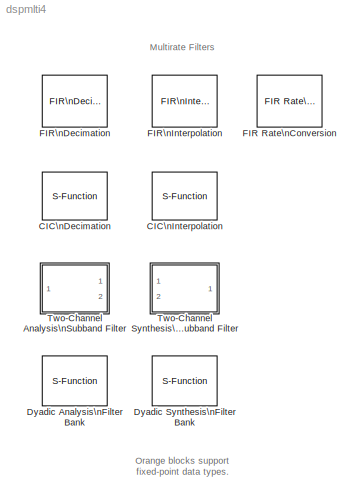
MODEL dspmlti4
KIND library
BLOCK [S-Function] CIC\nDecimation
  CopyFcn = dspfixptcopycallback
  FunctionName = sdspcicfilter
  MaskCallbackString = dspblkcicfilter('dynamic');||dspblkcicfilter('dynamic');||||||dspblkcicfilter('dynamic');||dspblkcicfilter('dynamic',get_param(gcb,'launchFVT'));|
  MaskDescription = Apply a Cascaded Integrator-Comb Decimator filter to the input signal. You can define the filter with the mask parameters, or by a CIC multirate filter (MFILT) object defined in the MATLAB workspace. You can use the latter option only when the Filter Design Toolbox is installed.\n\nWhen you choose a filter structure with zero latency, the filter output is not delayed. The outputs of the other stru...<+141ch>
  MaskDisplay = disp(dspblkcicfilter('icon'));
  MaskEnableString = on,on,on,on,on,on,on,on,on,on,on,on
  MaskIconFrame = on
  MaskIconOpaque = on
  MaskIconRotate = none
  MaskIconUnits = autoscale
  MaskInitialization = [ftype_Sfcn, R_Sfcn, M_Sfcn, N_Sfcn, stage2NWL_Sfcn, outWL_Sfcn, states_Sfcn, resampPhase_Sfcn] = dspblkcicfilter('init',R,resampPhase,M,N,BPS,outputWordLength,filtobj);
  MaskPromptString = Filter specified via:|Multirate filter variable:|Filter structure:|Decimation factor (R):|Resampler phase (0 to R-1):|Differential delay (M):|Number of stages (N):|Word length for each of the (2*N) filter stages:|Output word length mode:|Output word length:|Launch Filter Visualization Tool (FVTool)|Framing:
  MaskSelfModifiable = on
  MaskStyleString = popup(Dialog|Multirate object in workspace),edit,popup(Decimator|Zero-latency decimator),edit,edit,edit,edit,edit,popup(Same as final filter stage|Same as input|User-defined),edit,checkbox,popup(Maintain input frame rate|Maintain input frame size)
  MaskTabNameString = ,,,,,,,,,,,
  MaskToolTipString = on,on,on,on,on,on,on,on,on,on,on,on
  MaskTunableValueString = off,off,off,off,off,off,off,off,off,off,off,off
  MaskType = CIC Decimation
  MaskValueString = Dialog|Hm_decim|Decimator|2|0|1|2|[16 16 16 16]|Same as final filter stage|32|off|Maintain input frame rate
  MaskVarAliasString = ,,,,,,,,,,,
  MaskVariables = filtFrom=@1;filtobj=@2;ftype=@3;R=@4;resampPhase=@5;M=@6;N=@7;BPS=@8;outputMode=@9;outputWordLength=@10;launchFVT=@11;framing=@12;
  MaskVisibilityString = on,off,on,on,on,on,on,on,on,off,on,off
  Parameters = ftype_Sfcn, R_Sfcn, M_Sfcn, N_Sfcn, stage2NWL_Sfcn, outWL_Sfcn, states_Sfcn, resampPhase_Sfcn, framing
  Ports = [1, 1]
  UserData = DataTag0
  UserDataPersistent = on
BLOCK [S-Function] CIC\nInterpolation
  CopyFcn = dspfixptcopycallback
  FunctionName = sdspcicfilter
  MaskCallbackString = dspblkcicfilter('dynamic');||dspblkcicfilter('dynamic');|||||dspblkcicfilter('dynamic');||dspblkcicfilter('dynamic');||dspblkcicfilter('dynamic',get_param(gcb,'launchFVT'));|
  MaskDescription = Apply a Cascaded Integrator-Comb Interpolator filter to the input signal. You can define the filter with the mask parameters, or by a CIC multirate filter (MFILT) object defined in the MATLAB workspace. You can use the latter option only when the Filter Design Toolbox is installed.\n\nWhen you choose a filter structure with zero latency, the filter output is not delayed. The outputs of the other s...<+144ch>
  MaskDisplay = disp(dspblkcicfilter('icon'));
  MaskEnableString = on,on,on,on,on,on,on,on,on,on,on,on,on
  MaskIconFrame = on
  MaskIconOpaque = on
  MaskIconRotate = none
  MaskIconUnits = autoscale
  MaskInitialization = if (strcmpi(get_param(gcb,'filtFrom'),'Dialog') && strcmpi(get_param(gcb,'filtStageWLMode'),'Use minimum number of bits per stage')),\n	BPS_mask_helper = -1;\nelse\n	BPS_mask_helper = BPS;\nend\n[ftype_Sfcn, R_Sfcn, M_Sfcn, N_Sfcn, stage2NWL_Sfcn, outWL_Sfcn, states_Sfcn, resampPhase_Sfcn] = dspblkcicfilter('init',R,resampPhase,M,N,BPS_mask_helper,outputWordLength,filtobj);\n
  MaskPromptString = Filter specified via:|Multirate filter variable:|Filter structure:|Interpolation factor (R):|Resampler phase (0 to R-1):|Differential delay (M):|Number of stages (N):|Filter stages word length mode:|Word length for each of the (2*N) filter stages:|Output word length mode:|Output word length:|Launch Filter Visualization Tool (FVTool)|Framing:
  MaskSelfModifiable = on
  MaskStyleString = popup(Dialog|Multirate object in workspace),edit,popup(Interpolator|Zero-latency interpolator),edit,edit,edit,edit,popup(Use minimum number of bits per stage|User-defined),edit,popup(Same as final filter stage|Same as input|User-defined),edit,checkbox,popup(Maintain input frame rate|Maintain input frame size)
  MaskTabNameString = ,,,,,,,,,,,,
  MaskToolTipString = on,on,on,on,on,on,on,on,on,on,on,on,on
  MaskTunableValueString = off,off,off,off,off,off,off,off,off,off,off,off,off
  MaskType = CIC Interpolation
  MaskValueString = Dialog|Hm_interp|Interpolator|2|0|1|2|Use minimum number of bits per stage|[16 16 16 16]|Same as final filter stage|32|off|Maintain input frame rate
  MaskVarAliasString = ,,,,,,,,,,,,
  MaskVariables = filtFrom=@1;filtobj=@2;ftype=@3;R=@4;resampPhase=@5;M=@6;N=@7;filtStageWLMode=@8;BPS=@9;outputMode=@10;outputWordLength=@11;launchFVT=@12;framing=@13;
  MaskVisibilityString = on,off,on,on,on,on,on,on,off,on,off,on,off
  Parameters = ftype_Sfcn, R_Sfcn, M_Sfcn, N_Sfcn, stage2NWL_Sfcn, outWL_Sfcn, states_Sfcn, resampPhase_Sfcn, framing
  Ports = [1, 1]
  UserData = DataTag1
  UserDataPersistent = on
BLOCK [S-Function] Dyadic Analysis\nFilter Bank
  FunctionName = sdspdwt
  MaskCallbackString = dspblkdwt|||||||
  MaskDescription = Decomposes a signal into subbands with smaller bandwidths and slower sample rates. Uses a filter bank with specified lowpass and highpass FIR filters, which can be user-defined or wavelet-based (use of wavelets requires the Wavelet Toolbox). Usually, the lowpass and highpass filters should be half-band filters designed to complement each other.\n\n\nWhen 'Output' is set to 'Multiple ports', the blo...<+629ch>
  MaskDisplay = plot(x,y)\ntext(0.08,0.1,str)
  MaskEnableString = on,off,off,on,on,on,on,on
  MaskHelp = web(dspbhelp);
  MaskIconFrame = on
  MaskIconOpaque = on
  MaskIconRotate = none
  MaskIconUnits = normalized
  MaskInitialization = [x,y, str] = dspblkdwt('icon');\n[phl, phh] = dspblkdwt('init', LPF, HPF, tree);\n
  MaskPromptString = Filter:|Filter order [synthesis / analysis]:|Wavelet order: |Lowpass FIR filter coefficients:|Highpass FIR filter coefficients:|Number of levels:|Tree structure:|Output:
  MaskSelfModifiable = on
  MaskStyleString = popup(User-defined|Haar|Daubechies|Symlets|Coiflets|Biorthogonal|Reverse Biorthogonal|Discrete Meyer),popup([1 / 1]|[1 / 3]|[1 / 5]|[2 / 2]|[2 / 4]|[2 / 6]|[2 / 8]|[3 / 1]|[3 / 3]|[3 / 5]|[3 / 7]|[3 / 9]|[4 / 4]|[5 / 5]|[6 / 8]),edit,edit,edit,edit,popup(Asymmetric|Symmetric),popup(Single port|Multiple ports)
  MaskTabNameString = ,,,,,,,
  MaskToolTipString = on,on,on,on,on,on,on,on
  MaskTunableValueString = off,off,off,off,off,off,off,off
  MaskType = Dyadic Analysis Filter Bank
  MaskValueString = User-defined|[1 / 1]|2|[0.0352   -0.0854   -0.1350   0.4599   0.8069   0.3327]|[-0.3327    0.8069   -0.4599   -0.1350    0.0854    0.0352]|2|Asymmetric|Multiple ports
  MaskVarAliasString = ,,,,,,,
  MaskVariables = Wname=&1;OrdRec_ordDec=&2;Order=@3;LPF=@4;HPF=@5;NumLevels=@6;tree=@7;Output=@8;
  MaskVisibilityString = on,off,off,on,on,on,on,on
  Parameters = phl, phh, NumLevels, tree, Output
  Ports = [1, 3]
BLOCK [S-Function] Dyadic Synthesis\nFilter Bank
  FunctionName = sdspidwt
  MaskCallbackString = dspblkidwt|||||||
  MaskDescription = Reconstructs a signal from its subbands with smaller bandwidths and slower sample rates. Uses a filter bank with specified lowpass and highpass FIR filters, which can be user-defined or wavelet-based (use of wavelets requires the Wavelet Toolbox). Usually, the lowpass and highpass filters should be half-band filters designed to complement each other.\n\n\nWhen 'Input' is set to 'Multiple ports', yo...<+554ch>
  MaskDisplay = plot(x,y)\ntext(0.08,0.1,str)
  MaskEnableString = on,off,off,on,on,on,on,on
  MaskHelp = web(dspbhelp);
  MaskIconFrame = on
  MaskIconOpaque = on
  MaskIconRotate = port
  MaskIconUnits = normalized
  MaskInitialization = [x,y,str] = dspblkidwt('icon');\n[phl, phh] = dspblkidwt('init', LPF, HPF, tree);\n
  MaskPromptString = Filter:|Filter order [synthesis, analysis]:|Wavelet order: |Lowpass FIR filter coefficients:|Highpass FIR filter coefficients:|Number of levels:|Tree Structure:|Input:
  MaskSelfModifiable = on
  MaskStyleString = popup(User-defined|Haar|Daubechies|Symlets|Coiflets|Biorthogonal|Reverse Biorthogonal|Discrete Meyer),popup([1 / 1]|[1 / 3]|[1 / 5]|[2 / 2]|[2 / 4]|[2 / 6]|[2 / 8]|[3 / 1]|[3 / 3]|[3 / 5]|[3 / 7]|[3 / 9]|[4 / 4]|[5 / 5]|[6 / 8]),edit,edit,edit,edit,popup(Asymmetric|Symmetric),popup(Single port|Multiple ports)
  MaskTabNameString = ,,,,,,,
  MaskToolTipString = on,on,on,on,on,on,on,on
  MaskTunableValueString = off,off,off,off,off,off,off,off
  MaskType = Dyadic Synthesis Filter Bank
  MaskValueString = User-defined|[1 / 1]|2|[0.3327    0.8069    0.4599   -0.1350   -0.0854    0.0352]|[0.0352    0.0854   -0.1350   -0.4599    0.8069   -0.3327]|2|Asymmetric|Multiple ports
  MaskVarAliasString = ,,,,,,,
  MaskVariables = Wname=&1;OrdRec_ordDec=&2;Order=@3;LPF=@4;HPF=@5;NumLevels=@6;tree=@7;Input=@8;
  MaskVisibilityString = on,off,off,on,on,on,on,on
  Parameters = phl, phh, NumLevels, tree, Input
  Ports = [3, 1]
BLOCK [Reference] FIR Rate\nConversion  REF=dspmlti3/FIR Rate\nConversion
  DialogController = dspDDGCreate
  DialogControllerArgs = DataTag4
  L = 3
  M = 2
  Ports = [1, 1]
  SourceBlock = dspmlti3/FIR Rate\nConversion
  SourceType = FIR Rate Conversion
  accumFracLength = 30
  accumMode = Inherit via internal rule
  accumWordLength = 32
  additionalParams = off
  allowOverrides = on
  firstCoeffFracLength = 15
  firstCoeffMode = Same word length as input
  firstCoeffWordLength = 16
  h = remez(70,[0 .28 .32 1],[1 1 0 0])
  outputFracLength = 15
  outputMode = Same as accumulator
  outputWordLength = 16
  overflowMode = off
  prodOutputFracLength = 30
  prodOutputMode = Inherit via internal rule
  prodOutputWordLength = 32
  roundingMode = Floor
BLOCK [Reference] FIR\nDecimation  REF=dspmlti3/FIR\nDecimation
  D = 2
  DialogController = dspDDGCreate
  DialogControllerArgs = DataTag2
  Ports = [1, 1]
  SourceBlock = dspmlti3/FIR\nDecimation
  SourceType = FIR Decimation
  accumFracLength = 30
  accumMode = Inherit via internal rule
  accumWordLength = 32
  additionalParams = off
  allowOverrides = on
  firstCoeffFracLength = 15
  firstCoeffMode = Same word length as input
  firstCoeffWordLength = 16
  framing = Maintain input frame size
  h = fir1(35,0.4)
  outputBufInitCond = 0
  outputFracLength = 15
  outputMode = Same as accumulator
  outputWordLength = 16
  overflowMode = off
  prodOutputFracLength = 30
  prodOutputMode = Inherit via internal rule
  prodOutputWordLength = 32
  roundingMode = Floor
BLOCK [Reference] FIR\nInterpolation  REF=dspmlti3/FIR\nInterpolation
  DialogController = dspDDGCreate
  DialogControllerArgs = DataTag3
  L = 3
  Ports = [1, 1]
  SourceBlock = dspmlti3/FIR\nInterpolation
  SourceType = FIR Interpolation
  accumFracLength = 30
  accumMode = Inherit via internal rule
  accumWordLength = 32
  additionalParams = off
  allowOverrides = on
  firstCoeffFracLength = 15
  firstCoeffMode = Same word length as input
  firstCoeffWordLength = 16
  framing = Maintain input frame size
  h = fir1(15,1/4)
  outputBufInitCond = 0
  outputFracLength = 15
  outputMode = Same as accumulator
  outputWordLength = 16
  overflowMode = off
  prodOutputFracLength = 30
  prodOutputMode = Inherit via internal rule
  prodOutputWordLength = 32
  roundingMode = Floor
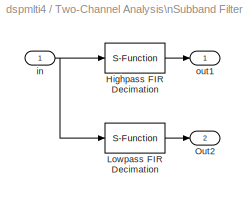
BLOCK [SubSystem] Two-Channel Analysis\nSubband Filter
  CopyFcn = dspfixptcopycallback
  DialogController = dspDDGCreate
  DialogControllerArgs = DataTag5
  MaskCallbackString = ||||||||||||||||||
  MaskDescription = Decompose a signal into a high-frequency subband (Hi band) and a low-frequency subband (Lo band) using the specified highpass and lowpass FIR filters.  Each subband has half the bandwidth and half the sample rate of the original signal.  Usually, the highpass and lowpass filters should be half-band filters designed to complement each other. This block accepts sample- and frame-based inputs of all ...<+611ch>
  MaskDisplay = disp('');\nport_label('output', 1, 'Hi band');\nport_label('output', 2, 'Lo band');
  MaskEnableString = on,on,on,on,on,on,on,on,on,on,on,on,on,on,on,on,on,on,on
  MaskHelp = web(dspbhelp);
  MaskIconFrame = on
  MaskIconOpaque = on
  MaskIconRotate = none
  MaskIconUnits = autoscale
  MaskInitialization = outputBufInitCond = 0;\nhpf    = dspblkfirdn2('setup',hpf,2);\nlpf    = dspblkfirdn2('setup',lpf,2);\ndtInfo = dspGetFixptDataTypeInfo(gcbh,47);
  MaskPromptString = Lowpass FIR filter coefficients:|Highpass FIR filter coefficients:|Framing:|--------------- Show additional parameters ---------------|Allow overrides from DSP Fixed-Point Attributes blocks|Fixed-point coefficient attributes:|Coefficient word length:|Coefficient fraction length:|Fixed-point output attributes:|Output word length:|Output fraction length:|Fixed-point accumulator attributes:|Accumulat...<+208ch>
  MaskSelfModifiable = on
  MaskStyleString = edit,edit,popup(Maintain input frame size|Maintain input frame rate),checkbox,checkbox,popup(Same word length as input|Specify word length|Binary point scaling|Slope and bias scaling|User-defined),edit,edit,popup(Same as accumulator|Same as product output|Same as input|Binary point scaling|Slope and bias scaling|User-defined),edit,edit,popup(Inherit via internal rule|Same as product output|Same as...<+218ch>
  MaskTabNameString = ,,,,,,,,,,,,,,,,,,
  MaskToolTipString = on,on,on,on,on,on,on,on,on,on,on,on,on,on,on,on,on,on,on
  MaskTunableValueString = off,on,off,off,off,off,off,off,off,off,off,off,off,off,off,off,off,off,off
  MaskType = Two-Channel Analysis Subband Filter
  MaskValueString = [0.0352   -0.0854   -0.1350   0.4599   0.8069   0.3327]|[-0.3327    0.8069   -0.4599   -0.1350    0.0854    0.0352]|Maintain input frame size|off|off|Same word length as input|16|15|Same as accumulator|16|14|Inherit via internal rule|32|30|Inherit via internal rule|32|30|Floor|off
  MaskVarAliasString = ,,,,,,,,,,,,,,,,,,
  MaskVariables = lpf=@1;hpf=@2;framing=@3;additionalParams=@4;allowOverrides=@5;firstCoeffMode=@6;firstCoeffWordLength=@7;firstCoeffFracLength=@8;outputMode=@9;outputWordLength=@10;outputFracLength=@11;accumMode=@12;accumWordLength=@13;accumFracLength=@14;prodOutputMode=@15;prodOutputWordLength=@16;prodOutputFracLength=@17;roundingMode=@18;overflowMode=@19;
  MaskVisibilityString = on,on,on,on,on,on,on,on,on,on,on,on,on,on,on,on,on,on,on
  MinAlgLoopOccurrences = off
  Ports = [1, 2]
  PropExecContextAcrossSSBoundary = on
  RTWSystemCode = Auto
  TreatAsAtomicUnit = off
BLOCK [S-Function] Two-Channel Analysis\nSubband Filter/Highpass FIR Decimation
  FunctionName = sdspfirdn2
  Parameters = hpf,2,framing,outputBufInitCond,dtInfo.firstCoeffMode,dtInfo.firstCoeffWordLength,dtInfo.firstCoeffFracLength,dtInfo.prodOutputMode,dtInfo.prodOutputWordLength,dtInfo.prodOutputFracLength,dtInfo.accumMode,dtInfo.accumWordLength,dtInfo.accumFracLength,dtInfo.outputMode,dtInfo.outputWordLength,dtInfo.outputFracLength,dtInfo.roundingMode,dtInfo.overflowMode
  Ports = [1, 1]
BLOCK [S-Function] Two-Channel Analysis\nSubband Filter/Lowpass FIR Decimation
  FunctionName = sdspfirdn2
  Parameters = lpf,2,framing,outputBufInitCond,dtInfo.firstCoeffMode,dtInfo.firstCoeffWordLength,dtInfo.firstCoeffFracLength,dtInfo.prodOutputMode,dtInfo.prodOutputWordLength,dtInfo.prodOutputFracLength,dtInfo.accumMode,dtInfo.accumWordLength,dtInfo.accumFracLength,dtInfo.outputMode,dtInfo.outputWordLength,dtInfo.outputFracLength,dtInfo.roundingMode,dtInfo.overflowMode
  Ports = [1, 1]
BLOCK [Outport] Two-Channel Analysis\nSubband Filter/Out2
  BusOutputAsStruct = off
  IconDisplay = Port number
  Port = 2
BLOCK [Inport] Two-Channel Analysis\nSubband Filter/in
  IconDisplay = Port number
  LatchInput = off
BLOCK [Outport] Two-Channel Analysis\nSubband Filter/out1
  BusOutputAsStruct = off
  IconDisplay = Port number
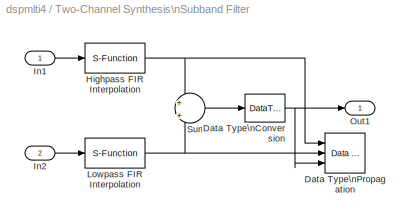
BLOCK [SubSystem] Two-Channel Synthesis\nSubband Filter
  CopyFcn = dspfixptcopycallback
  DialogController = dspDDGCreate
  DialogControllerArgs = DataTag6
  MaskCallbackString = ||||||||||||||||||
  MaskDescription = Reconstruct a signal from a high-frequency subband (Hi band) and a low-frequnecy subband (Lo band) using the specified highpass and lowpass FIR filters.  The input subbands should have the same bandwidths and sample rates. Usually, the highpass and lowpass filters should be half-band filters designed to complement each other.  This block accepts sample- and frame-based inputs of all sizes.\n\n\nTo ...<+583ch>
  MaskDisplay = disp('');\nport_label('input', 1, 'Hi band');\nport_label('input', 2, 'Lo band');
  MaskEnableString = on,on,on,on,on,on,on,on,on,on,on,on,on,on,on,on,on,on,on
  MaskHelp = web(dspbhelp);
  MaskIconFrame = on
  MaskIconOpaque = on
  MaskIconRotate = none
  MaskIconUnits = autoscale
  MaskInitialization = outputBufInitCond        = 0;\n[hpf,outputBufInitCondH] = dspblkupfir2('setup',hpf,2,outputBufInitCond);\n[lpf,outputBufInitCondL] = dspblkupfir2('setup',lpf,2,outputBufInitCond);\ndtInfo                   = dspblk2chsbank('init');
  MaskPromptString = Lowpass FIR filter coefficients:|Highpass FIR filter coefficients:|Framing:|--------------- Show additional parameters ---------------|Allow overrides from DSP Fixed-Point Attributes blocks|Fixed-point coefficient attributes:|Coefficient word length:|Coefficient fraction length:|Fixed-point output attributes:|Output word length:|Output fraction length:|Fixed-point accumulator attributes:|Accumulat...<+208ch>
  MaskSelfModifiable = on
  MaskStyleString = edit,edit,popup(Maintain input frame size|Maintain input frame rate),checkbox,checkbox,popup(Same word length as input|Specify word length|Binary point scaling|Slope and bias scaling|User-defined),edit,edit,popup(Same as accumulator|Same as product output|Same as input|Binary point scaling|Slope and bias scaling|User-defined),edit,edit,popup(Inherit via internal rule|Same as product output|Same as...<+218ch>
  MaskTabNameString = ,,,,,,,,,,,,,,,,,,
  MaskToolTipString = on,on,on,on,on,on,on,on,on,on,on,on,on,on,on,on,on,on,on
  MaskTunableValueString = off,off,off,off,off,off,off,off,off,off,off,off,off,off,off,off,off,off,off
  MaskType = Two-Channel Synthesis Subband Filter
  MaskValueString = [0.3327    0.8069    0.4599   -0.1350   -0.0854    0.0352]|[0.0352    0.0854   -0.1350   -0.4599    0.8069   -0.3327]|Maintain input frame size|off|off|Same word length as input|16|15|Same as accumulator|16|14|Inherit via internal rule|32|30|Inherit via internal rule|32|30|Floor|off
  MaskVarAliasString = ,,,,,,,,,,,,,,,,,,
  MaskVariables = lpf=@1;hpf=@2;framing=@3;additionalParams=@4;allowOverrides=@5;firstCoeffMode=@6;firstCoeffWordLength=@7;firstCoeffFracLength=@8;outputMode=@9;outputWordLength=@10;outputFracLength=@11;accumMode=@12;accumWordLength=@13;accumFracLength=@14;prodOutputMode=@15;prodOutputWordLength=@16;prodOutputFracLength=@17;roundingMode=@18;overflowMode=@19;
  MaskVisibilityString = on,on,on,on,on,on,on,on,on,on,on,on,on,on,on,on,on,on,on
  MinAlgLoopOccurrences = off
  Ports = [2, 1]
  PropExecContextAcrossSSBoundary = on
  RTWSystemCode = Auto
  TreatAsAtomicUnit = off
BLOCK [DataTypeConversion] Two-Channel Synthesis\nSubband Filter/Data Type\nConversion
  RndMeth = Floor
  SaturateOnIntegerOverflow = off
BLOCK [Reference] Two-Channel Synthesis\nSubband Filter/Data Type\nPropagation  REF=simulink/Signal\nAttributes/Data Type\nPropagation
  BiasAdd = 0
  BiasBase = Bias1
  BiasMult = 1
  IfRefDouble = double
  IfRefSingle = single
  IsSigned = IsSigned1 or IsSigned2
  NumBitsAdd = 0
  NumBitsAllowFinal = 1:128
  NumBitsBase = NumBits1
  NumBitsMult = 1
  Ports = [3]
  PropDataType = sfix(16)
  PropDataTypeMode = Inherit via propagation rule
  PropScaling = 2^-10
  PropScalingMode = Inherit via propagation rule
  SlopeAdd = 0
  SlopeBase = Slope1
  SlopeMult = 1
  SourceBlock = simulink/Signal\nAttributes/Data Type\nPropagation
  SourceType = Data Type Propagation
  ValuesUsedBestPrec = [5 -7]
BLOCK [S-Function] Two-Channel Synthesis\nSubband Filter/Highpass FIR Interpolation
  FunctionName = sdspupfir2
  Parameters = hpf,2,framing,outputBufInitCondH,dtInfo.firstCoeffMode,dtInfo.firstCoeffWordLength,dtInfo.firstCoeffFracLength,dtInfo.prodOutputMode,dtInfo.prodOutputWordLength,dtInfo.prodOutputFracLength,dtInfo.accumMode,dtInfo.accumWordLength,dtInfo.accumFracLength,dtInfo.outputMode,dtInfo.outputWordLength,dtInfo.outputFracLength,dtInfo.roundingMode,dtInfo.overflowMode
  Ports = [1, 1]
BLOCK [Inport] Two-Channel Synthesis\nSubband Filter/In1
  IconDisplay = Port number
  LatchInput = off
BLOCK [Inport] Two-Channel Synthesis\nSubband Filter/In2
  IconDisplay = Port number
  LatchInput = off
  Port = 2
BLOCK [S-Function] Two-Channel Synthesis\nSubband Filter/Lowpass FIR Interpolation
  FunctionName = sdspupfir2
  Parameters = lpf,2,framing,outputBufInitCondL,dtInfo.firstCoeffMode,dtInfo.firstCoeffWordLength,dtInfo.firstCoeffFracLength,dtInfo.prodOutputMode,dtInfo.prodOutputWordLength,dtInfo.prodOutputFracLength,dtInfo.accumMode,dtInfo.accumWordLength,dtInfo.accumFracLength,dtInfo.outputMode,dtInfo.outputWordLength,dtInfo.outputFracLength,dtInfo.roundingMode,dtInfo.overflowMode
  Ports = [1, 1]
BLOCK [Outport] Two-Channel Synthesis\nSubband Filter/Out1
  BusOutputAsStruct = off
  IconDisplay = Port number
BLOCK [Sum] Two-Channel Synthesis\nSubband Filter/Sum
  IconShape = round
  Inputs = +|+
  OutDataTypeMode = Inherit via internal rule
  Ports = [2, 1]
  SaturateOnIntegerOverflow = off
ANNOTATION (root): Multirate Filters
ANNOTATION (root): Orange blocks support\nfixed-point data types.
LINE Two-Channel Analysis\nSubband Filter/Highpass FIR Decimation:1 -> Two-Channel Analysis\nSubband Filter/out1:1
LINE Two-Channel Analysis\nSubband Filter/Lowpass FIR Decimation:1 -> Two-Channel Analysis\nSubband Filter/Out2:1
NET Two-Channel Analysis\nSubband Filter/in:1 -> Two-Channel Analysis\nSubband Filter/Highpass FIR Decimation:1, Two-Channel Analysis\nSubband Filter/Lowpass FIR Decimation:1
NET Two-Channel Synthesis\nSubband Filter/Data Type\nConversion:1 -> Two-Channel Synthesis\nSubband Filter/Data Type\nPropagation:3, Two-Channel Synthesis\nSubband Filter/Out1:1
NET Two-Channel Synthesis\nSubband Filter/Highpass FIR Interpolation:1 -> Two-Channel Synthesis\nSubband Filter/Data Type\nPropagation:1, Two-Channel Synthesis\nSubband Filter/Sum:1
LINE Two-Channel Synthesis\nSubband Filter/In1:1 -> Two-Channel Synthesis\nSubband Filter/Highpass FIR Interpolation:1
LINE Two-Channel Synthesis\nSubband Filter/In2:1 -> Two-Channel Synthesis\nSubband Filter/Lowpass FIR Interpolation:1
NET Two-Channel Synthesis\nSubband Filter/Lowpass FIR Interpolation:1 -> Two-Channel Synthesis\nSubband Filter/Data Type\nPropagation:2, Two-Channel Synthesis\nSubband Filter/Sum:2
LINE Two-Channel Synthesis\nSubband Filter/Sum:1 -> Two-Channel Synthesis\nSubband Filter/Data Type\nConversion:1
note: NET lines group one-source signal fan-out (src -> all destinations, sorted); 1:1 wires keep LINE
